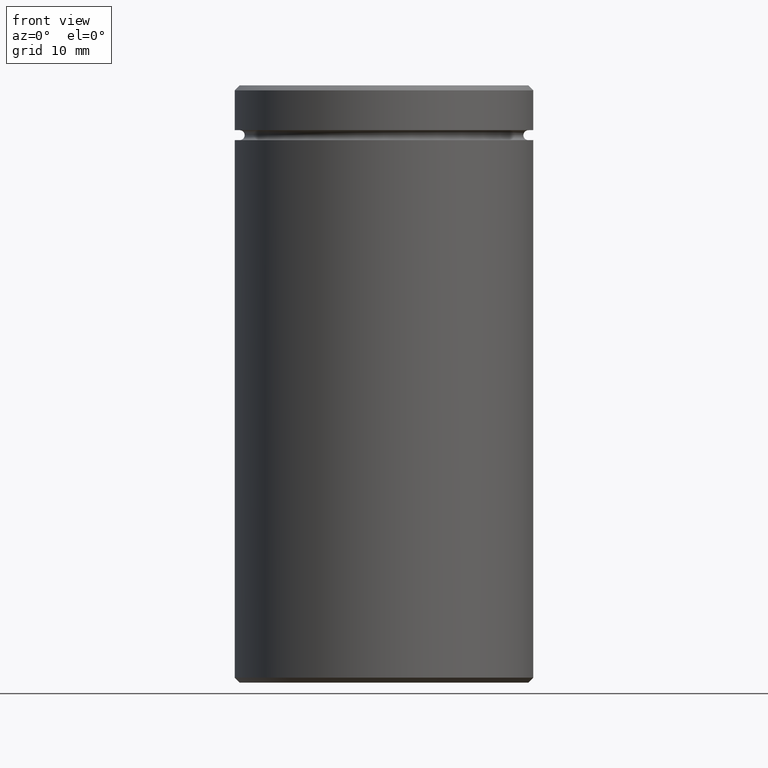
[diagram: clean part render]
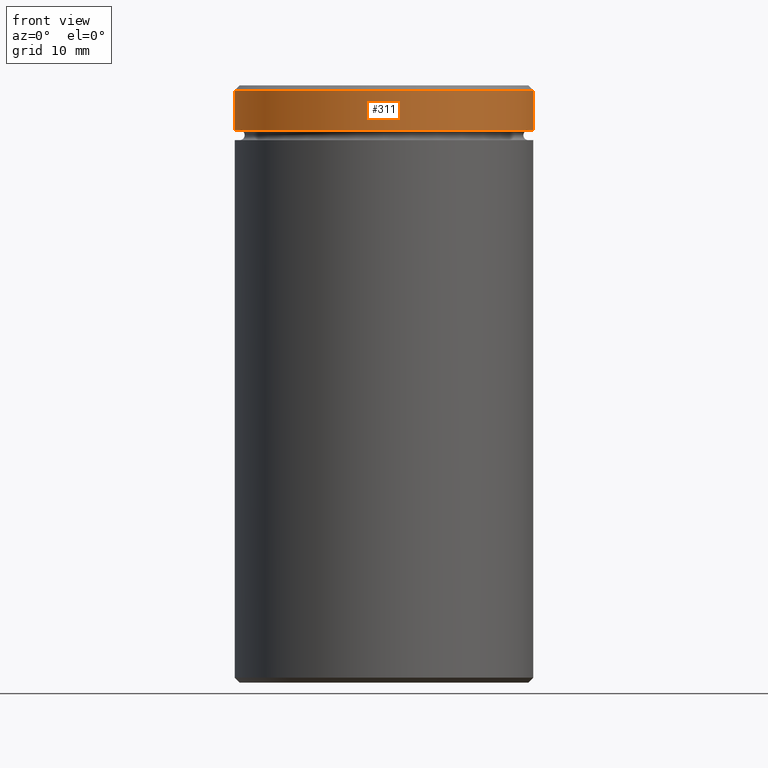
[diagram: same view with one face highlighted and labeled with its STEP entity id]
A machine part, front view. The second image highlights one B-rep face of the part: STEP entity #311.
In plain terms, the highlighted cylindrical surface (partial cylindrical patch) has radius 15 mm, axis along (-0, -0, 1).
Its self-contained STEP definition (entity closure, byte-faithful):
#4 = EDGE_CURVE ( 'NONE', #536, #167, #161, .T. ) ;
#38 = CARTESIAN_POINT ( 'NONE',  ( -15.00000000000000000, 1.836970198721029589E-15, -0.5000000000000038858 ) ) ;
#40 = CARTESIAN_POINT ( 'NONE',  ( 15.00000000000000000, 0.000000000000000000, 0.000000000000000000 ) ) ;
#49 = DIRECTION ( 'NONE',  ( -0.000000000000000000, -0.000000000000000000, 1.000000000000000000 ) ) ;
#91 = FACE_OUTER_BOUND ( 'NONE', #539, .T. ) ;
#100 = CARTESIAN_POINT ( 'NONE',  ( 15.00000000000000000, 0.000000000000000000, -4.500000000000000888 ) ) ;
#101 = DIRECTION ( 'NONE',  ( 1.000000000000000000, 0.000000000000000000, 0.000000000000000000 ) ) ;
#117 = CARTESIAN_POINT ( 'NONE',  ( -15.00000000000000000, 1.836970198721029589E-15, 0.000000000000000000 ) ) ;
#124 = CIRCLE ( 'NONE', #510, 15.00000000000000000 ) ;
#141 = AXIS2_PLACEMENT_3D ( 'NONE', #365, #493, #101 ) ;
#143 = ORIENTED_EDGE ( 'NONE', *, *, #416, .T. ) ;
#145 = CARTESIAN_POINT ( 'NONE',  ( 0.000000000000000000, 0.000000000000000000, -4.500000000000000888 ) ) ;
#161 = LINE ( 'NONE', #117, #459 ) ;
#167 = VERTEX_POINT ( 'NONE', #38 ) ;
#213 = CARTESIAN_POINT ( 'NONE',  ( -15.00000000000000000, 1.836970198721029589E-15, -4.500000000000000888 ) ) ;
#227 = DIRECTION ( 'NONE',  ( 1.000000000000000000, 0.000000000000000000, 0.000000000000000000 ) ) ;
#262 = CARTESIAN_POINT ( 'NONE',  ( 0.000000000000000000, 0.000000000000000000, 0.000000000000000000 ) ) ;
#276 = EDGE_CURVE ( 'NONE', #363, #544, #487, .T. ) ;
#295 = DIRECTION ( 'NONE',  ( -0.000000000000000000, -0.000000000000000000, 1.000000000000000000 ) ) ;
#304 = VECTOR ( 'NONE', #475, 1000.000000000000000 ) ;
#311 = ADVANCED_FACE ( 'NONE', ( #91 ), #533, .T. ) ;
#351 = CIRCLE ( 'NONE', #141, 15.00000000000000000 ) ;
#363 = VERTEX_POINT ( 'NONE', #100 ) ;
#365 = CARTESIAN_POINT ( 'NONE',  ( 0.000000000000000000, 0.000000000000000000, -0.5000000000000038858 ) ) ;
#401 = DIRECTION ( 'NONE',  ( 1.000000000000000000, 0.000000000000000000, 0.000000000000000000 ) ) ;
#416 = EDGE_CURVE ( 'NONE', #536, #363, #124, .T. ) ;
#422 = AXIS2_PLACEMENT_3D ( 'NONE', #262, #49, #227 ) ;
#431 = ORIENTED_EDGE ( 'NONE', *, *, #4, .F. ) ;
#437 = ORIENTED_EDGE ( 'NONE', *, *, #440, .T. ) ;
#440 = EDGE_CURVE ( 'NONE', #544, #167, #351, .T. ) ;
#453 = ORIENTED_EDGE ( 'NONE', *, *, #276, .T. ) ;
#459 = VECTOR ( 'NONE', #295, 1000.000000000000000 ) ;
#475 = DIRECTION ( 'NONE',  ( -0.000000000000000000, -0.000000000000000000, 1.000000000000000000 ) ) ;
#487 = LINE ( 'NONE', #40, #304 ) ;
#493 = DIRECTION ( 'NONE',  ( 0.000000000000000000, 0.000000000000000000, -1.000000000000000000 ) ) ;
#496 = DIRECTION ( 'NONE',  ( -0.000000000000000000, -0.000000000000000000, 1.000000000000000000 ) ) ;
#510 = AXIS2_PLACEMENT_3D ( 'NONE', #145, #496, #401 ) ;
#533 = CYLINDRICAL_SURFACE ( 'NONE', #422, 15.00000000000000000 ) ;
#536 = VERTEX_POINT ( 'NONE', #213 ) ;
#539 = EDGE_LOOP ( 'NONE', ( #431, #143, #453, #437 ) ) ;
#544 = VERTEX_POINT ( 'NONE', #558 ) ;
#558 = CARTESIAN_POINT ( 'NONE',  ( 15.00000000000000000, 0.000000000000000000, -0.5000000000000038858 ) ) ;